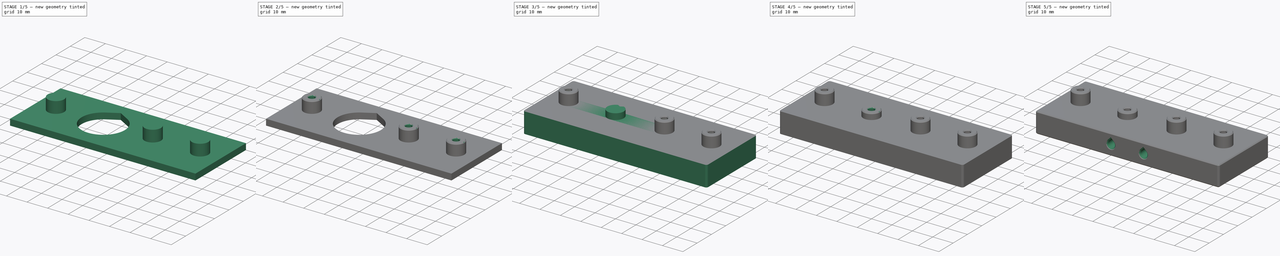
[diagram: build sequence overview — one tinted view per stage of 5, left to right]
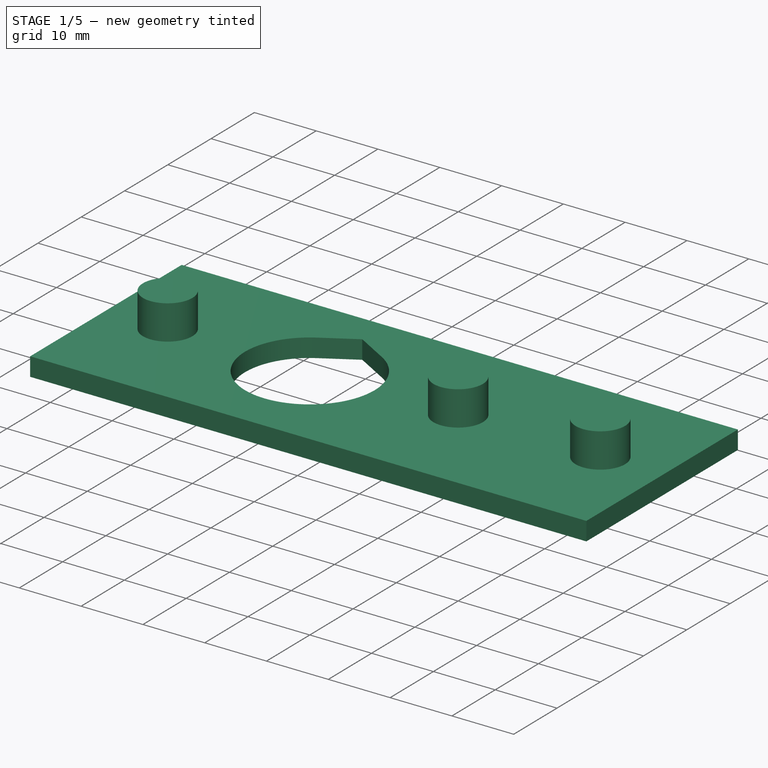
[diagram: stage 1 of 5 — iso view after this stage's code; geometry added in this stage tinted green]
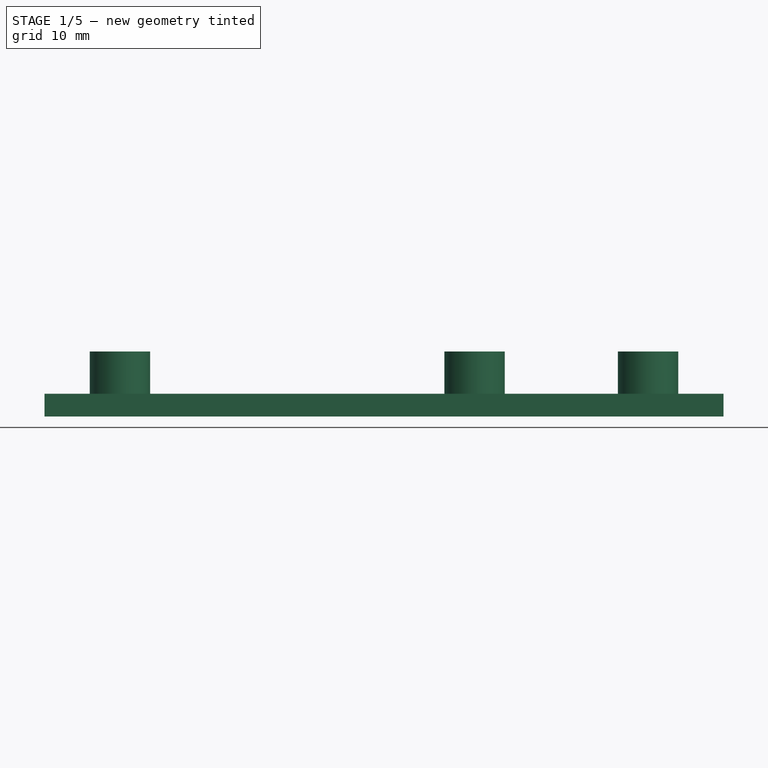
[diagram: stage 1 of 5 — front view after this stage's code; geometry added in this stage tinted green]
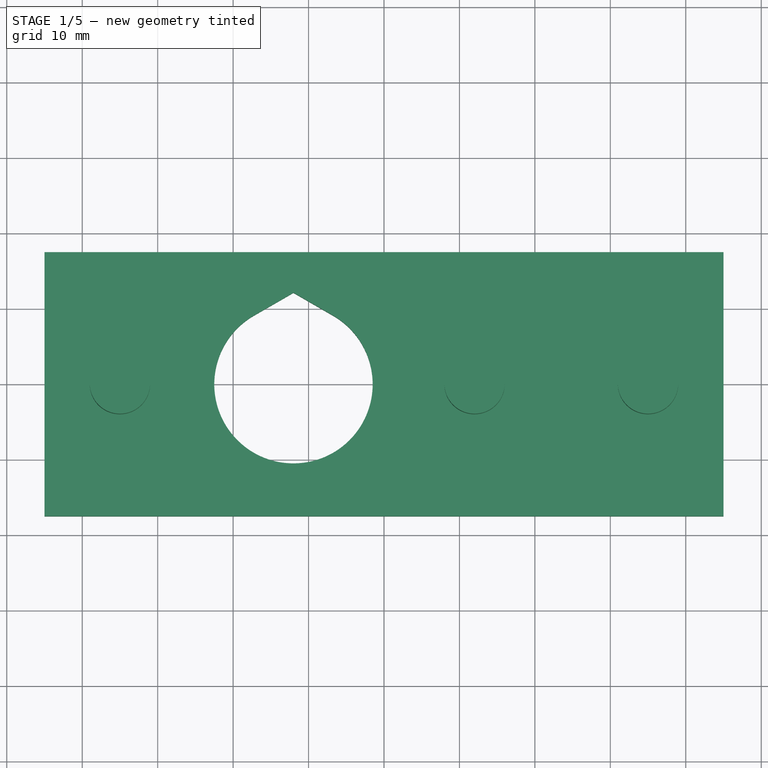
[diagram: stage 1 of 5 — top view after this stage's code; geometry added in this stage tinted green]
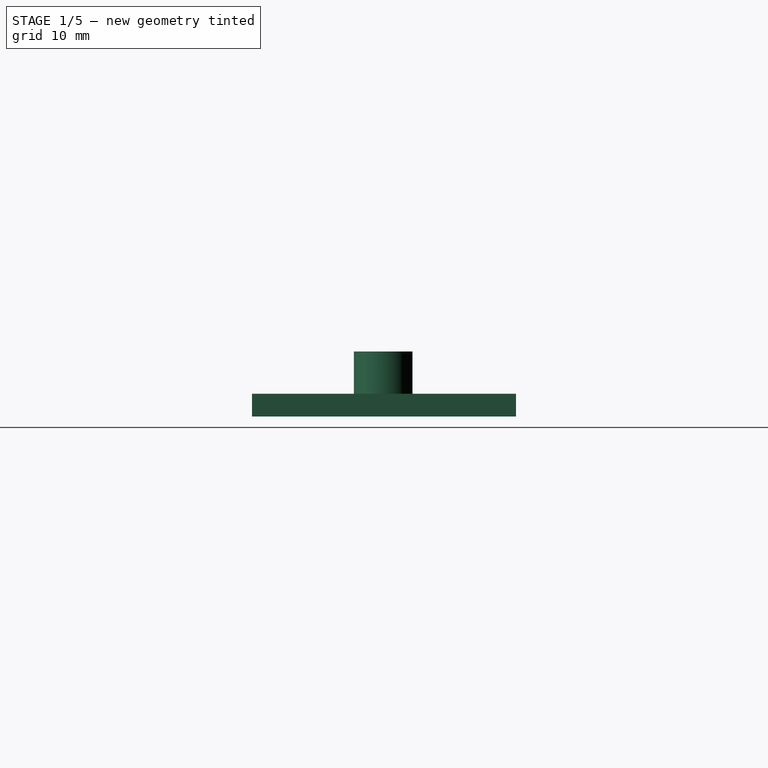
[diagram: stage 1 of 5 — right view after this stage's code; geometry added in this stage tinted green]
FCSTD DOCUMENT  (FreeCAD 1.0R39109 (Git))
Label: spacer
License: All rights reserved
LicenseURL: https://en.wikipedia.org/wiki/All_rights_reserved
objects: Sketcher::SketchObject×14, PartDesign::Pocket×6, PartDesign::Pad×5, PartDesign::Chamfer×5, PartDesign::Hole×4, PartDesign::Fillet×3, PartDesign::Body×1
note: 98 computed .brp shape members not serialized (recipe doc carries the construction recipe); baked Part::Feature solids carry a one-line shape summary decoded from their .brp

FEATURE [Sketcher::SketchObject] Sketch
  ArcFitTolerance = 1e-06
  AttachmentSupport = -> [XY_Plane]
  FullyConstrained = true
  MakeInternals = false
  MapMode = 5
  sketch-geometry (13):
    g0: LineSegment [constr] StartX=0 StartY=0 StartZ=0 EndX=-12 EndY=0 EndZ=0
    g1: Circle [constr] CenterX=-12 CenterY=0 CenterZ=0 NormalX=0 NormalY=0 NormalZ=1 AngleXU=0 Radius=12
    g2: LineSegment [constr] StartX=-12 StartY=0 StartZ=0 EndX=-35 EndY=0 EndZ=0
    g3: Circle [constr] CenterX=-35 CenterY=0 CenterZ=0 NormalX=0 NormalY=0 NormalZ=1 AngleXU=0 Radius=8
    g4: LineSegment StartX=-45 StartY=17.5 StartZ=0 EndX=-45 EndY=-17.5 EndZ=0
    g5: LineSegment StartX=-45 StartY=-17.5 StartZ=0 EndX=45 EndY=-17.5 EndZ=0
    g6: LineSegment StartX=45 StartY=-17.5 StartZ=0 EndX=45 EndY=17.5 EndZ=0
    g7: LineSegment StartX=45 StartY=17.5 StartZ=0 EndX=-45 EndY=17.5 EndZ=0
    g8: LineSegment [constr] StartX=-2e-16 StartY=17.5 StartZ=0 EndX=2e-16 EndY=-17.5 EndZ=0
    g9: LineSegment [constr] StartX=0 StartY=0 StartZ=0 EndX=12 EndY=0 EndZ=0
    g10: LineSegment [constr] StartX=12 StartY=0 StartZ=0 EndX=35 EndY=0 EndZ=0
    g11: Circle [constr] CenterX=12 CenterY=0 CenterZ=0 NormalX=0 NormalY=0 NormalZ=1 AngleXU=0 Radius=12
    g12: Circle [constr] CenterX=35 CenterY=0 CenterZ=0 NormalX=0 NormalY=0 NormalZ=1 AngleXU=0 Radius=8
  constraints (33):
    c: Distance(g0) = 12
    c: Coincident(g0,g-1)
    c: PointOnObject(g0,g-1)
    c: Coincident(g1,g0)
    c: PointOnObject(g0,g1)
    c: Distance(g2) = 23
    c: Coincident(g2,g0)
    c: PointOnObject(g2,g-1)
    c: Diameter(g3) = 16
    c: Coincident(g3,g2)
    c: Coincident(g4,g5)
    c: Coincident(g5,g6)
    c: Coincident(g6,g7)
    c: Coincident(g7,g4)
    c: Vertical(g4)
    c: Vertical(g6)
    c: Horizontal(g5)
    c: Horizontal(g7)
    c: DistanceX(g7,g7) = 90
    c: DistanceY(g4,g4) = 35
    c: Symmetric(g7,g7,g8)
    c: Symmetric(g5,g5,g8)
    c: Symmetric(g8,g8,g0)
    c: Distance(g9) = 12
    c: Coincident(g9,g0)
    c: PointOnObject(g9,g-1)
    c: Distance(g10) = 23
    c: Coincident(g10,g9)
    c: PointOnObject(g10,g-1)
    c: Coincident(g11,g9)
    c: Equal(g11,g1)
    c: Coincident(g12,g10)
    c: Equal(g12,g3)
FEATURE [PartDesign::Pad] Pad
  Direction = (0,0,1)
  Length = 3
  Length2 = 10
  Profile = -> Sketch
  ReferenceAxis = -> Sketch [N_Axis]
  Refine = true
  Suppressed = false
  Type = 0
FEATURE [Sketcher::SketchObject] Sketch001
  ArcFitTolerance = 1e-06
  AttachmentSupport = -> [Pad]
  FullyConstrained = true
  MakeInternals = false
  MapMode = 5
  Placement = pos=(0,0,3) rot=(0,0,1;0rad)
  sketch-geometry (2):
    g0: LineSegment [constr] StartX=0 StartY=0 StartZ=0 EndX=-12 EndY=0 EndZ=0
    g1: Circle CenterX=-12 CenterY=0 CenterZ=0 NormalX=0 NormalY=0 NormalZ=1 AngleXU=0 Radius=10.5
  constraints (5):
    c: Distance(g0) = 12
    c: Coincident(g0,g-1)
    c: PointOnObject(g0,g-1)
    c: Diameter(g1) = 21
    c: Coincident(g1,g0)
FEATURE [PartDesign::Hole] Hole
  BaseFeature = -> Pad
  CustomThreadClearance = 0
  Depth = 25
  DepthType = 0
  Diameter = 21
  DrillForDepth = false
  DrillPoint = 1
  DrillPointAngle = 118
  HoleCutCountersinkAngle = 90
  HoleCutCustomValues = false
  HoleCutDepth = 0
  HoleCutDiameter = 6.1
  HoleCutType = 0
  ModelThread = false
  Profile = -> Sketch001
  Refine = true
  Suppressed = false
  Tapered = false
  TaperedAngle = 90
  TeardropAngle = 120
  TeardropRotation = 90
  ThreadClass = 0
  ThreadDepth = 25
  ThreadDepthType = 0
  ThreadDirection = 0
  ThreadFit = 0
  ThreadSize = 0
  ThreadType = 0
  Threaded = false
  UseCustomThreadClearance = false
FEATURE [Sketcher::SketchObject] Sketch001_Teardrops
  ArcFitTolerance = 1e-06
  AttachmentSupport = -> [Sketch001]
  FullyConstrained = true
  MakeInternals = false
  MapMode = 2
  Placement = pos=(0,0,3) rot=(0,0,1;0rad)
  expr: Constraints[5] = Sketch001.Geometry[1].Center.x * 1 mm
  expr: Constraints[6] = Sketch001.Geometry[1].Center.y * 1 mm
  expr: Constraints[7] = Hole.Diameter
  expr: Constraints[8] = Hole.TeardropAngle
  expr: Constraints[9] = Hole.TeardropRotation
  sketch-geometry (4):
    g0: ArcOfCircle CenterX=-12 CenterY=0 CenterZ=0 NormalX=0 NormalY=0 NormalZ=1 AngleXU=0 Radius=10.5 StartAngle=2.0944 EndAngle=7.33038
    g1: LineSegment StartX=-17.25 StartY=9.09327 StartZ=0 EndX=-12 EndY=12.1244 EndZ=0
    g2: LineSegment StartX=-6.75 StartY=9.09327 StartZ=0 EndX=-12 EndY=12.1244 EndZ=0
    g3: LineSegment [constr] StartX=-12 StartY=0 StartZ=0 EndX=-12 EndY=12.1244 EndZ=0
  constraints (10):
    c: Coincident(g1,g2)
    c: Coincident(g1,g3)
    c: Coincident(g0,g3)
    c: Tangent(g0,g1) = 1.5708
    c: Tangent(g0,g2) = -1.5708
    c: DistanceX(g0) = -12
    c: DistanceY(g0) = 0
    c: Diameter(g0) = 21
    c: Angle(g1,g2) = 2.0944
    c: Angle(g3) = 1.5708
FEATURE [PartDesign::Pocket] Hole_Teardrops
  BaseFeature = -> Hole
  Direction = (0,0,-1)
  Length = 25
  Length2 = 5
  Profile = -> Sketch001_Teardrops
  ReferenceAxis = -> Sketch001_Teardrops [N_Axis]
  Refine = true
  Suppressed = false
  Type = 0
  expr: Length = Hole.Depth
  expr: Type = Hole.DepthType
FEATURE [Sketcher::SketchObject] Sketch002
  ArcFitTolerance = 1e-06
  AttachmentSupport = -> [Hole_Teardrops]
  FullyConstrained = true
  MakeInternals = false
  MapMode = 5
  Placement = pos=(0,0,3) rot=(0,0,1;0rad)
  sketch-geometry (7):
    g0: LineSegment [constr] StartX=0 StartY=0 StartZ=0 EndX=12 EndY=0 EndZ=0
    g1: LineSegment [constr] StartX=12 StartY=0 StartZ=0 EndX=35 EndY=0 EndZ=0
    g2: LineSegment [constr] StartX=0 StartY=0 StartZ=0 EndX=-12 EndY=0 EndZ=0
    g3: LineSegment [constr] StartX=-12 StartY=0 StartZ=0 EndX=-35 EndY=0 EndZ=0
    g4: Circle CenterX=35 CenterY=0 CenterZ=0 NormalX=0 NormalY=0 NormalZ=1 AngleXU=0 Radius=4
    g5: Circle CenterX=12 CenterY=0 CenterZ=0 NormalX=0 NormalY=0 NormalZ=1 AngleXU=0 Radius=4
    g6: Circle CenterX=-35 CenterY=0 CenterZ=0 NormalX=0 NormalY=0 NormalZ=1 AngleXU=0 Radius=4
  constraints (18):
    c: Distance(g0) = 12
    c: Coincident(g0,g-1)
    c: PointOnObject(g0,g-1)
    c: Distance(g1) = 23
    c: Coincident(g1,g0)
    c: PointOnObject(g1,g-1)
    c: Coincident(g2,g0)
    c: PointOnObject(g2,g-1)
    c: Coincident(g3,g2)
    c: PointOnObject(g3,g-1)
    c: Equal(g2,g0)
    c: Equal(g1,g3)
    c: Diameter(g4) = 8
    c: Coincident(g4,g1)
    c: Coincident(g5,g0)
    c: Coincident(g6,g3)
    c: Equal(g5,g4)
    c: Equal(g6,g5)
FEATURE [PartDesign::Pad] Pad001
  BaseFeature = -> Hole_Teardrops
  Direction = (0,0,1)
  Length = 5.6
  Length2 = 10
  Profile = -> Sketch002
  ReferenceAxis = -> Sketch002 [N_Axis]
  Refine = true
  Suppressed = false
  Type = 0
FEATURE [Sketcher::SketchObject] Sketch003
  ArcFitTolerance = 1e-06
  AttachmentSupport = -> [Pad001]
  ExternalGeometry = -> [Pad001]
  FullyConstrained = false
  MakeInternals = false
  MapMode = 5
  Placement = pos=(0,0,8.6) rot=(0,0,1;0rad)
  sketch-geometry (10):
    g0: LineSegment [constr] StartX=-35 StartY=0 StartZ=0 EndX=-35 EndY=3 EndZ=0
    g1: LineSegment StartX=-35 StartY=3 StartZ=0 EndX=-38.4641 EndY=5 EndZ=0
    g2: LineSegment StartX=-35 StartY=3 StartZ=0 EndX=-31.5359 EndY=5 EndZ=0
    g3: LineSegment StartX=-38.4641 StartY=5 StartZ=0 EndX=-31.5359 EndY=5 EndZ=0
    g4: LineSegment StartX=12 StartY=3 StartZ=0 EndX=8.5359 EndY=5 EndZ=0
    g5: LineSegment StartX=8.5359 StartY=5 StartZ=0 EndX=15.4641 EndY=5 EndZ=0
    g6: LineSegment StartX=15.4641 StartY=5 StartZ=0 EndX=12 EndY=3 EndZ=0
    g7: LineSegment StartX=38.4641 StartY=5 StartZ=0 EndX=35 EndY=3 EndZ=0
    g8: LineSegment StartX=31.5359 StartY=5 StartZ=0 EndX=38.4641 EndY=5 EndZ=0
    g9: LineSegment StartX=35 StartY=3 StartZ=0 EndX=31.5359 EndY=5 EndZ=0
  constraints (17):
    c: Distance(g0) = 3
    c: Coincident(g0,g-3)
    c: Vertical(g0)
    c: Distance(g1) = 4
    c: Coincident(g1,g0)
    c: Angle(g1,g0) = 2.0944
    c: Coincident(g2,g0)
    c: Equal(g2,g1)
    c: Angle(g0,g2) = 2.0944
    c: Coincident(g3,g1)
    c: Coincident(g3,g2)
    c: Coincident(g5,g4)
    c: Coincident(g6,g5)
    c: Coincident(g6,g4)
    c: Coincident(g8,g9)
    c: Coincident(g7,g8)
    c: Coincident(g7,g9)
FEATURE [PartDesign::Pocket] Pocket
  BaseFeature = -> Pad001
  Direction = (0,0,-1)
  Length = 0
  Length2 = 5
  Profile = -> Sketch003
  ReferenceAxis = -> Sketch003 [N_Axis]
  Refine = true
  Suppressed = false
  Type = 3
  UpToFace = -> Pad001 [Face5]
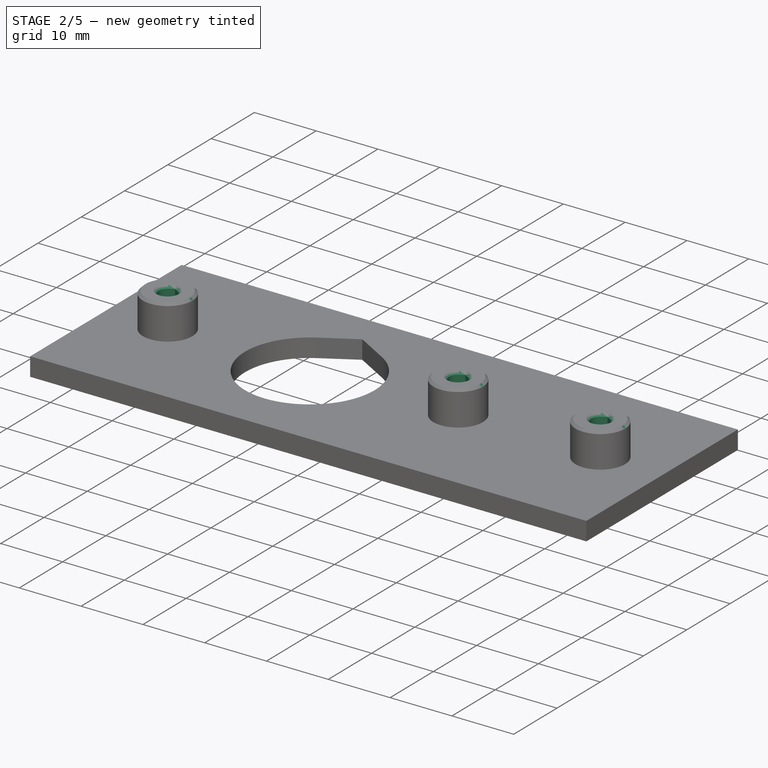
[diagram: stage 2 of 5 — iso view after this stage's code; geometry added in this stage tinted green]
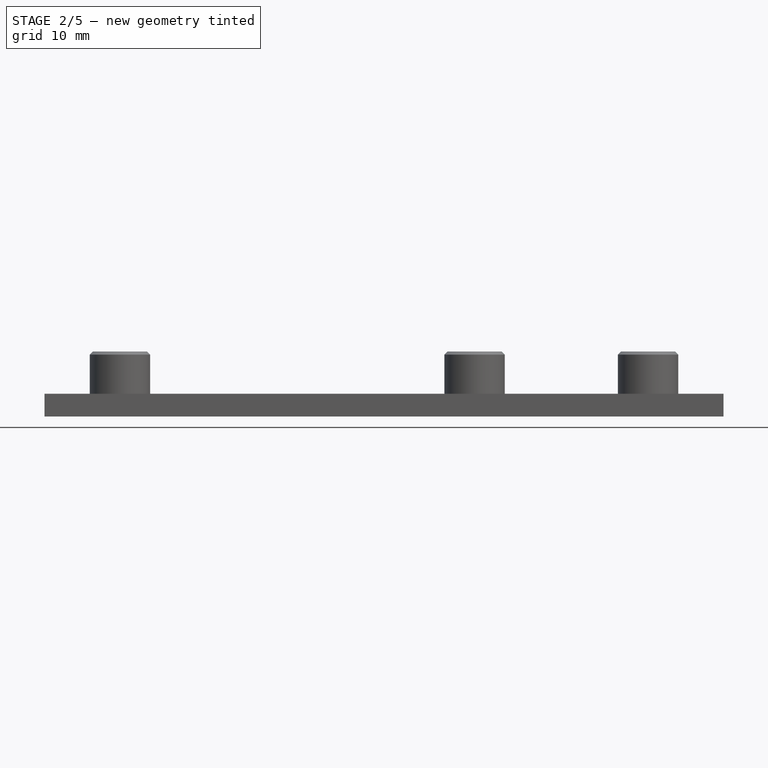
[diagram: stage 2 of 5 — front view after this stage's code; geometry added in this stage tinted green]
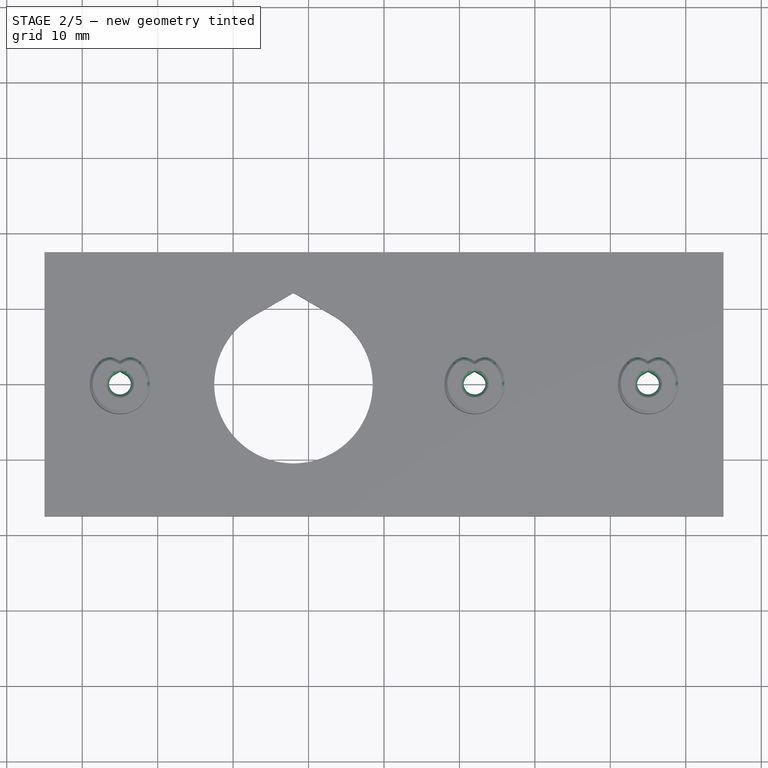
[diagram: stage 2 of 5 — top view after this stage's code; geometry added in this stage tinted green]
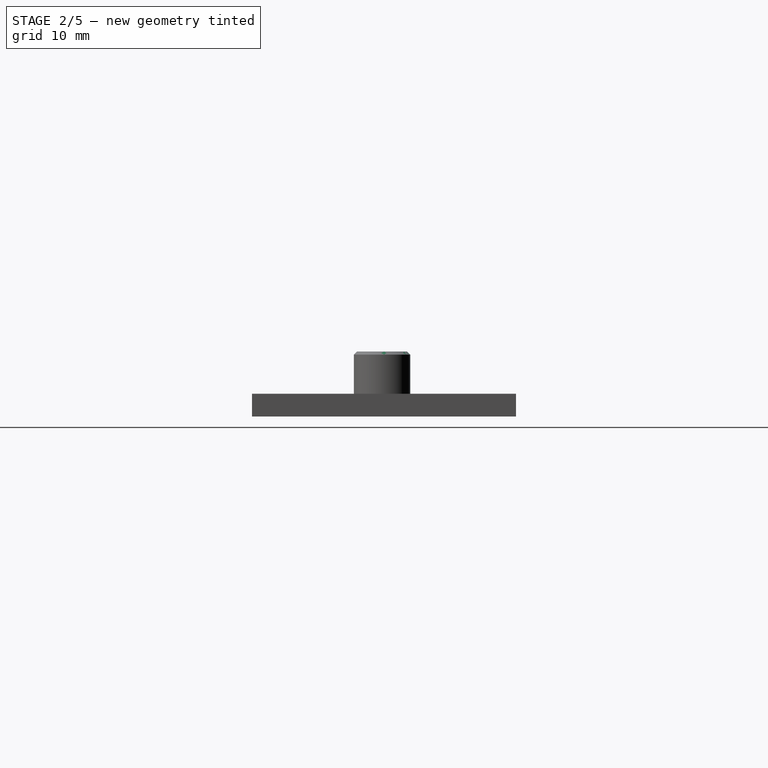
[diagram: stage 2 of 5 — right view after this stage's code; geometry added in this stage tinted green]
FEATURE [Sketcher::SketchObject] Sketch004
  ArcFitTolerance = 1e-06
  AttachmentSupport = -> [Pocket]
  ExternalGeometry = -> [Pocket]
  FullyConstrained = true
  MakeInternals = false
  MapMode = 5
  Placement = pos=(0,0,8.6) rot=(0,0,1;0rad)
  sketch-geometry (3):
    g0: Circle CenterX=-35 CenterY=0 CenterZ=0 NormalX=0 NormalY=0 NormalZ=1 AngleXU=0 Radius=1.25
    g1: Circle CenterX=12 CenterY=0 CenterZ=0 NormalX=0 NormalY=0 NormalZ=1 AngleXU=0 Radius=1.25
    g2: Circle CenterX=35 CenterY=0 CenterZ=0 NormalX=0 NormalY=0 NormalZ=1 AngleXU=0 Radius=1.25
  constraints (6):
    c: Diameter(g0) = 2.5
    c: Coincident(g0,g-3)
    c: Coincident(g1,g-4)
    c: Coincident(g2,g-5)
    c: Equal(g1,g0)
    c: Equal(g2,g1)
FEATURE [PartDesign::Hole] Hole001
  BaseFeature = -> Pocket
  CustomThreadClearance = 0
  Depth = 25
  DepthType = 0
  Diameter = 2.9
  DrillForDepth = false
  DrillPoint = 1
  DrillPointAngle = 118
  HoleCutCountersinkAngle = 90
  HoleCutCustomValues = false
  HoleCutDepth = 0
  HoleCutDiameter = 6.1
  HoleCutType = 0
  ModelThread = false
  Profile = -> Sketch004
  Refine = true
  Suppressed = false
  Tapered = false
  TaperedAngle = 90
  TeardropAngle = 120
  TeardropRotation = 90
  ThreadClass = 0
  ThreadDepth = 25
  ThreadDepthType = 0
  ThreadDirection = 0
  ThreadFit = 0
  ThreadSize = 8
  ThreadType = 1
  Threaded = false
  UseCustomThreadClearance = false
FEATURE [Sketcher::SketchObject] Sketch004_Teardrops
  ArcFitTolerance = 1e-06
  AttachmentSupport = -> [Sketch004]
  FullyConstrained = true
  MakeInternals = false
  MapMode = 2
  Placement = pos=(0,0,8.6) rot=(0,0,1;0rad)
  expr: Constraints[15] = Sketch004.Geometry[1].Center.x * 1 mm
  expr: Constraints[16] = Sketch004.Geometry[1].Center.y * 1 mm
  expr: Constraints[17] = Hole001.Diameter
  expr: Constraints[18] = Hole001.TeardropAngle
  expr: Constraints[19] = Hole001.TeardropRotation
  expr: Constraints[25] = Sketch004.Geometry[2].Center.x * 1 mm
  expr: Constraints[26] = Sketch004.Geometry[2].Center.y * 1 mm
  expr: Constraints[27] = Hole001.Diameter
  expr: Constraints[28] = Hole001.TeardropAngle
  expr: Constraints[29] = Hole001.TeardropRotation
  expr: Constraints[5] = Sketch004.Geometry[0].Center.x * 1 mm
  expr: Constraints[6] = Sketch004.Geometry[0].Center.y * 1 mm
  expr: Constraints[7] = Hole001.Diameter
  expr: Constraints[8] = Hole001.TeardropAngle
  expr: Constraints[9] = Hole001.TeardropRotation
  sketch-geometry (12):
    g0: ArcOfCircle CenterX=-35 CenterY=0 CenterZ=0 NormalX=0 NormalY=0 NormalZ=1 AngleXU=0 Radius=1.45 StartAngle=2.0944 EndAngle=7.33038
    g1: LineSegment StartX=-35.725 StartY=1.25574 StartZ=0 EndX=-35 EndY=1.67432 EndZ=0
    g2: LineSegment StartX=-34.275 StartY=1.25574 StartZ=0 EndX=-35 EndY=1.67432 EndZ=0
    g3: LineSegment [constr] StartX=-35 StartY=0 StartZ=0 EndX=-35 EndY=1.67432 EndZ=0
    g4: ArcOfCircle CenterX=12 CenterY=0 CenterZ=0 NormalX=0 NormalY=0 NormalZ=1 AngleXU=0 Radius=1.45 StartAngle=2.0944 EndAngle=7.33038
    g5: LineSegment StartX=11.275 StartY=1.25574 StartZ=0 EndX=12 EndY=1.67432 EndZ=0
    g6: LineSegment StartX=12.725 StartY=1.25574 StartZ=0 EndX=12 EndY=1.67432 EndZ=0
    g7: LineSegment [constr] StartX=12 StartY=0 StartZ=0 EndX=12 EndY=1.67432 EndZ=0
    g8: ArcOfCircle CenterX=35 CenterY=0 CenterZ=0 NormalX=0 NormalY=0 NormalZ=1 AngleXU=0 Radius=1.45 StartAngle=2.0944 EndAngle=7.33038
    g9: LineSegment StartX=34.275 StartY=1.25574 StartZ=0 EndX=35 EndY=1.67432 EndZ=0
    g10: LineSegment StartX=35.725 StartY=1.25574 StartZ=0 EndX=35 EndY=1.67432 EndZ=0
    g11: LineSegment [constr] StartX=35 StartY=0 StartZ=0 EndX=35 EndY=1.67432 EndZ=0
  constraints (30):
    c: Coincident(g1,g2)
    c: Coincident(g1,g3)
    c: Coincident(g0,g3)
    c: Tangent(g0,g1) = 1.5708
    c: Tangent(g0,g2) = -1.5708
    c: DistanceX(g0) = -35
    c: DistanceY(g0) = 0
    c: Diameter(g0) = 2.9
    c: Angle(g1,g2) = 2.0944
    c: Angle(g3) = 1.5708
    c: Coincident(g5,g6)
    c: Coincident(g5,g7)
    c: Coincident(g4,g7)
    c: Tangent(g4,g5) = 1.5708
    c: Tangent(g4,g6) = -1.5708
    c: DistanceX(g4) = 12
    c: DistanceY(g4) = 0
    c: Diameter(g4) = 2.9
    c: Angle(g5,g6) = 2.0944
    c: Angle(g7) = 1.5708
    c: Coincident(g9,g10)
    c: Coincident(g9,g11)
    c: Coincident(g8,g11)
    c: Tangent(g8,g9) = 1.5708
    c: Tangent(g8,g10) = -1.5708
    c: DistanceX(g8) = 35
    c: DistanceY(g8) = 0
    c: Diameter(g8) = 2.9
    c: Angle(g9,g10) = 2.0944
    c: Angle(g11) = 1.5708
FEATURE [PartDesign::Pocket] Hole001_Teardrops
  BaseFeature = -> Hole001
  Direction = (0,0,-1)
  Length = 25
  Length2 = 5
  Profile = -> Sketch004_Teardrops
  ReferenceAxis = -> Sketch004_Teardrops [N_Axis]
  Refine = true
  Suppressed = false
  Type = 0
  expr: Length = Hole001.Depth
  expr: Type = Hole001.DepthType
FEATURE [PartDesign::Fillet] Fillet
  Base = -> Hole001_Teardrops [Edge80,Edge77,Edge73,Edge70,Edge66,Edge63]
  BaseFeature = -> Hole001_Teardrops
  Radius = 2
  Refine = true
  SupportTransform = false
  Suppressed = false
  UseAllEdges = false
FEATURE [PartDesign::Chamfer] Chamfer
  Angle = 45
  Base = -> Fillet [Edge64,Edge53,Edge27,Edge78,Edge94,Edge98]
  BaseFeature = -> Fillet
  ChamferType = 0
  FlipDirection = false
  Refine = true
  Size = 0.4
  Size2 = 1
  SupportTransform = false
  Suppressed = false
  UseAllEdges = false
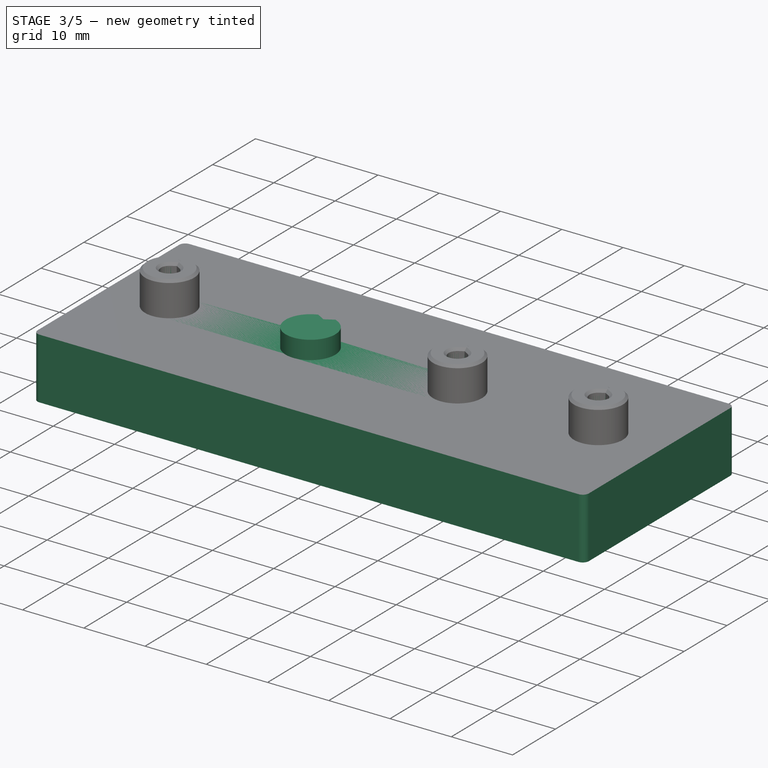
[diagram: stage 3 of 5 — iso view after this stage's code; geometry added in this stage tinted green]
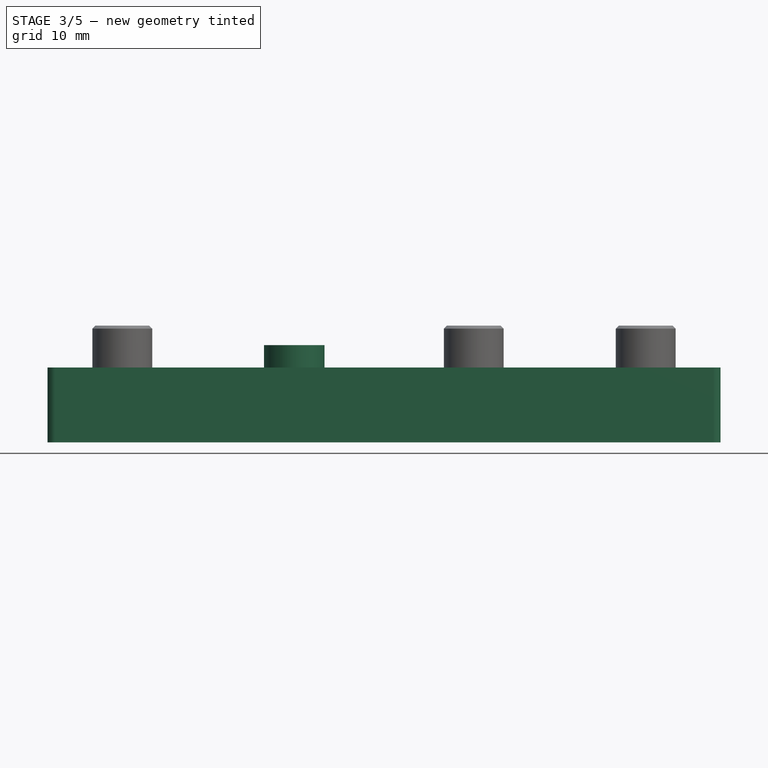
[diagram: stage 3 of 5 — front view after this stage's code; geometry added in this stage tinted green]
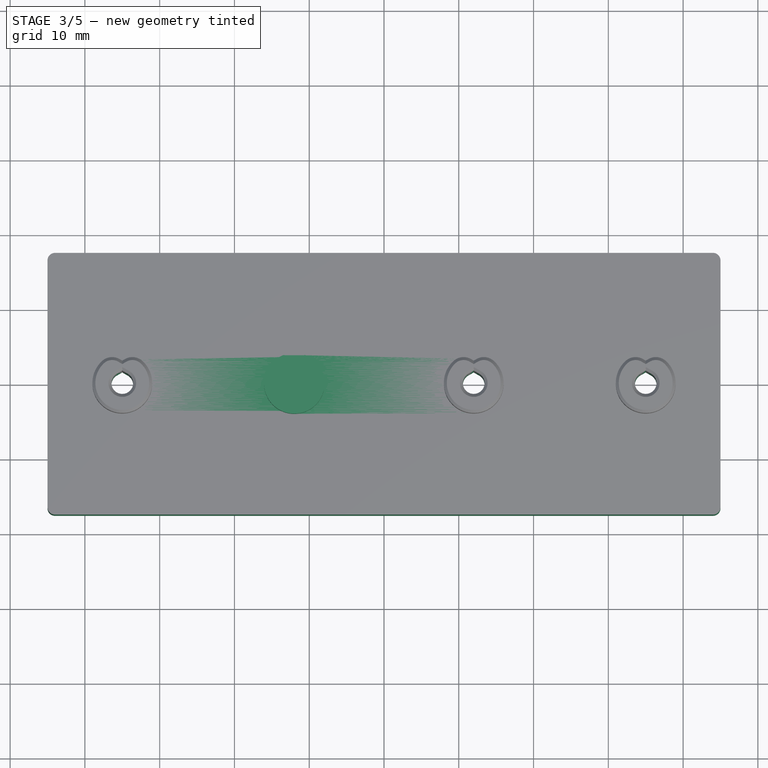
[diagram: stage 3 of 5 — top view after this stage's code; geometry added in this stage tinted green]
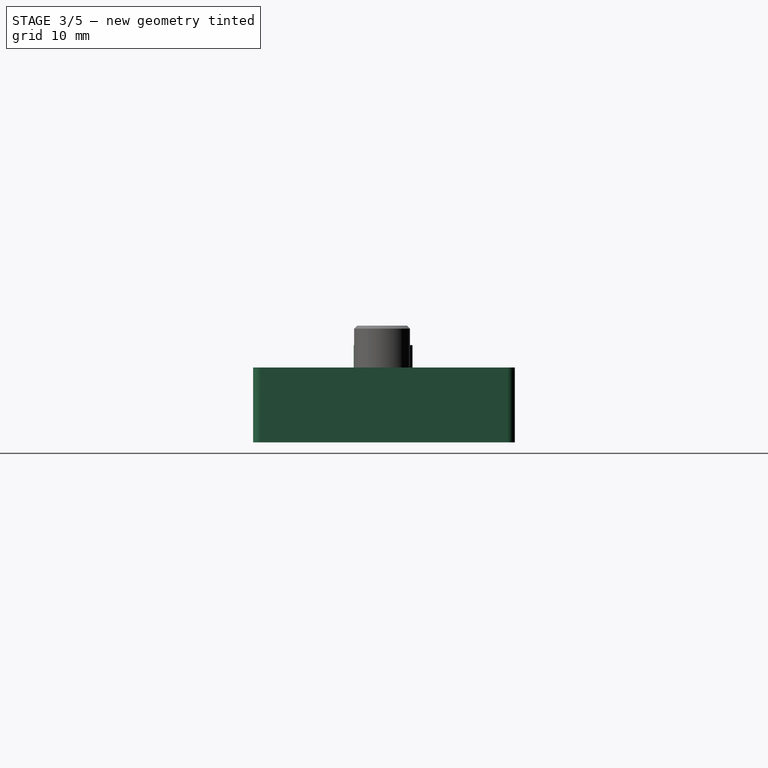
[diagram: stage 3 of 5 — right view after this stage's code; geometry added in this stage tinted green]
FEATURE [PartDesign::Fillet] Fillet001
  Base = -> Chamfer [Edge57,Edge52,Edge53,Edge55]
  BaseFeature = -> Chamfer
  Radius = 1
  Refine = true
  SupportTransform = false
  Suppressed = false
  UseAllEdges = false
FEATURE [PartDesign::Pad] Pad002
  BaseFeature = -> Fillet001
  Direction = (0,0,-1)
  Length = 7
  Length2 = 10
  Profile = -> Fillet001 [Face28]
  Refine = true
  Suppressed = false
  Type = 0
FEATURE [Sketcher::SketchObject] Sketch005
  ArcFitTolerance = 1e-06
  AttachmentSupport = -> [Pad002]
  FullyConstrained = false
  MakeInternals = false
  MapMode = 5
  Placement = pos=(0,0,3) rot=(0,0,1;0rad)
  sketch-geometry (1):
    g0: Circle CenterX=-11.6392 CenterY=0 CenterZ=0 NormalX=0 NormalY=0 NormalZ=1 AngleXU=0 Radius=14.7165
  constraints (1):
    c: PointOnObject(g0,g-1)
FEATURE [PartDesign::Pad] Pad003
  BaseFeature = -> Pad002
  Direction = (0,0,1)
  Length = 10
  Length2 = 10
  Profile = -> Sketch005 [Edge1]
  ReferenceAxis = -> Sketch005 [N_Axis]
  Refine = true
  Reversed = true
  Suppressed = false
  Type = 3
  UpToFace = -> Pad002 [Face1]
FEATURE [Sketcher::SketchObject] Sketch006
  ArcFitTolerance = 1e-06
  AttachmentSupport = -> [Pad003]
  ExternalGeometry = -> [Pad003]
  FullyConstrained = true
  MakeInternals = false
  MapMode = 5
  Placement = pos=(0,0,3) rot=(0,0,1;0rad)
  sketch-geometry (3):
    g0: LineSegment [constr] StartX=2e-16 StartY=0 StartZ=0 EndX=12 EndY=0 EndZ=0
    g1: LineSegment [constr] StartX=2e-16 StartY=0 StartZ=0 EndX=-12 EndY=0 EndZ=0
    g2: Circle CenterX=-12 CenterY=0 CenterZ=0 NormalX=0 NormalY=0 NormalZ=1 AngleXU=0 Radius=4.05
  constraints (7):
    c: Coincident(g0,g-1)
    c: Coincident(g0,g-3)
    c: Coincident(g1,g0)
    c: PointOnObject(g1,g-1)
    c: Equal(g1,g0)
    c: Diameter(g2) = 8.1
    c: Coincident(g2,g1)
FEATURE [PartDesign::Pad] Pad004
  BaseFeature = -> Pad003
  Direction = (0,0,1)
  Length = 3
  Length2 = 10
  Profile = -> Sketch006
  ReferenceAxis = -> Sketch006 [N_Axis]
  Refine = true
  Suppressed = false
  Type = 0
FEATURE [Sketcher::SketchObject] Sketch007
  ArcFitTolerance = 1e-06
  AttachmentSupport = -> [Pad004]
  ExternalGeometry = -> [Pad004]
  FullyConstrained = true
  MakeInternals = false
  MapMode = 5
  Placement = pos=(0,0,6) rot=(0,0,1;0rad)
  sketch-geometry (4):
    g0: LineSegment [constr] StartX=-12 StartY=0 StartZ=0 EndX=-12 EndY=3 EndZ=0
    g1: LineSegment StartX=-12 StartY=3 StartZ=0 EndX=-15.4641 EndY=5 EndZ=0
    g2: LineSegment StartX=-12 StartY=3 StartZ=0 EndX=-8.5359 EndY=5 EndZ=0
    g3: LineSegment StartX=-8.5359 StartY=5 StartZ=0 EndX=-15.4641 EndY=5 EndZ=0
  constraints (11):
    c: Distance(g0) = 3
    c: Coincident(g0,g-3)
    c: Vertical(g0)
    c: Distance(g1) = 4
    c: Coincident(g1,g0)
    c: Angle(g1,g0) = 2.0944
    c: Coincident(g2,g0)
    c: Equal(g2,g1)
    c: Angle(g0,g2) = 2.0944
    c: Coincident(g3,g2)
    c: Coincident(g3,g1)
FEATURE [PartDesign::Pocket] Pocket001
  BaseFeature = -> Pad004
  Direction = (0,0,-1)
  Length = 0
  Length2 = 5
  Profile = -> Sketch007
  ReferenceAxis = -> Sketch007 [N_Axis]
  Refine = true
  Suppressed = false
  Type = 3
  UpToFace = -> Pad004 [Face5]
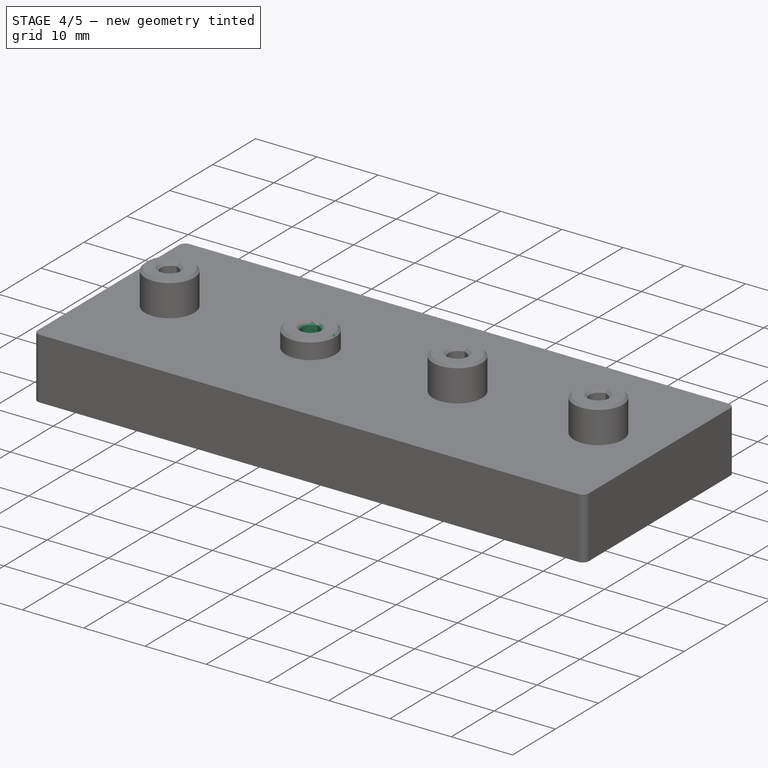
[diagram: stage 4 of 5 — iso view after this stage's code; geometry added in this stage tinted green]
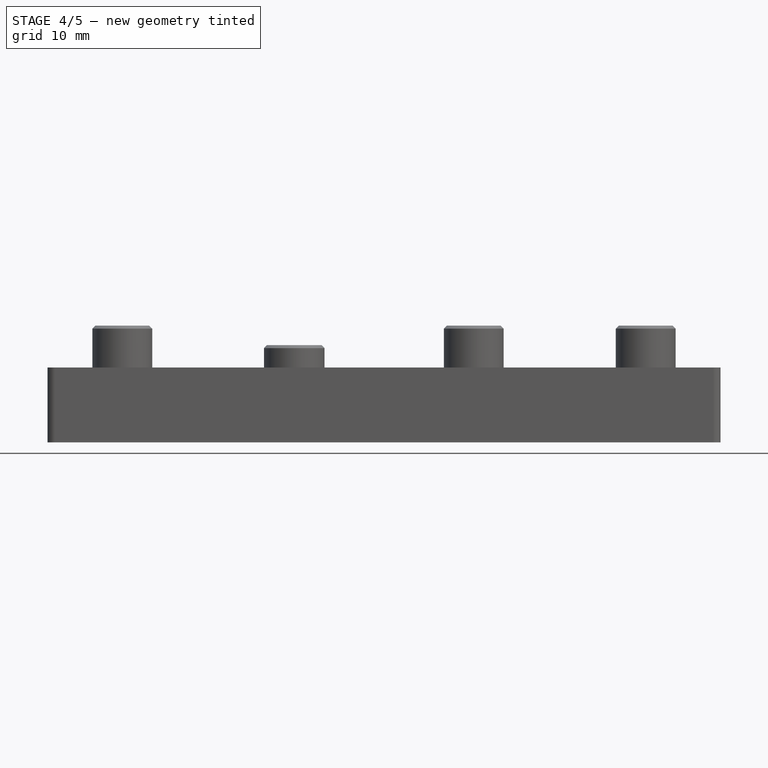
[diagram: stage 4 of 5 — front view after this stage's code; geometry added in this stage tinted green]
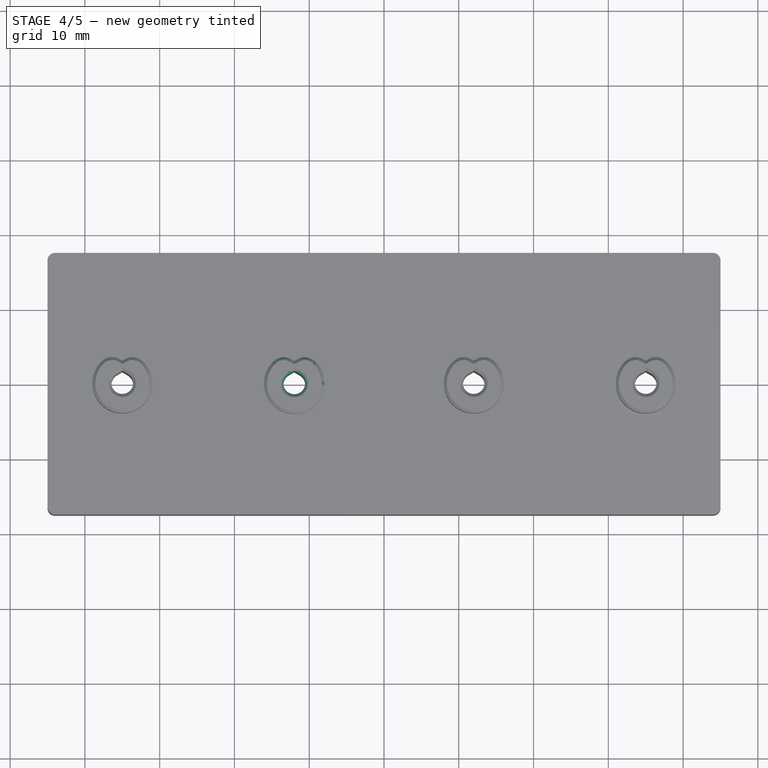
[diagram: stage 4 of 5 — top view after this stage's code; geometry added in this stage tinted green]
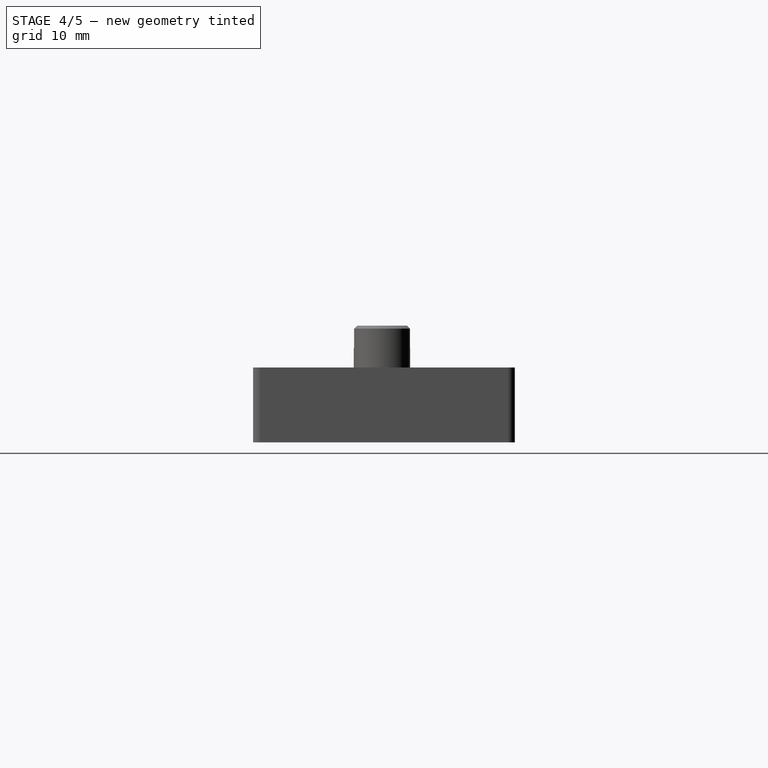
[diagram: stage 4 of 5 — right view after this stage's code; geometry added in this stage tinted green]
FEATURE [Sketcher::SketchObject] Sketch008
  ArcFitTolerance = 1e-06
  AttachmentSupport = -> [Pocket001]
  ExternalGeometry = -> [Pocket001]
  FullyConstrained = true
  MakeInternals = false
  MapMode = 5
  Placement = pos=(0,0,6) rot=(0,0,1;0rad)
  sketch-geometry (1):
    g0: Circle CenterX=-12 CenterY=0 CenterZ=0 NormalX=0 NormalY=0 NormalZ=1 AngleXU=0 Radius=1.25
  constraints (2):
    c: Diameter(g0) = 2.5
    c: Coincident(g0,g-3)
FEATURE [PartDesign::Hole] Hole002
  BaseFeature = -> Pocket001
  CustomThreadClearance = 0
  Depth = 25
  DepthType = 0
  Diameter = 2.9
  DrillForDepth = false
  DrillPoint = 1
  DrillPointAngle = 118
  HoleCutCountersinkAngle = 90
  HoleCutCustomValues = false
  HoleCutDepth = 0
  HoleCutDiameter = 6.1
  HoleCutType = 0
  ModelThread = false
  Profile = -> Sketch008
  Refine = true
  Suppressed = false
  Tapered = false
  TaperedAngle = 90
  TeardropAngle = 120
  TeardropRotation = 90
  ThreadClass = 0
  ThreadDepth = 25
  ThreadDepthType = 0
  ThreadDirection = 0
  ThreadFit = 0
  ThreadSize = 8
  ThreadType = 1
  Threaded = false
  UseCustomThreadClearance = false
FEATURE [Sketcher::SketchObject] Sketch008_Teardrops
  ArcFitTolerance = 1e-06
  AttachmentSupport = -> [Sketch008]
  FullyConstrained = true
  MakeInternals = false
  MapMode = 2
  Placement = pos=(0,0,6) rot=(0,0,1;0rad)
  expr: Constraints[5] = Sketch008.Geometry[0].Center.x * 1 mm
  expr: Constraints[6] = Sketch008.Geometry[0].Center.y * 1 mm
  expr: Constraints[7] = Hole002.Diameter
  expr: Constraints[8] = Hole002.TeardropAngle
  expr: Constraints[9] = Hole002.TeardropRotation
  sketch-geometry (4):
    g0: ArcOfCircle CenterX=-12 CenterY=0 CenterZ=0 NormalX=0 NormalY=0 NormalZ=1 AngleXU=0 Radius=1.45 StartAngle=2.0944 EndAngle=7.33038
    g1: LineSegment StartX=-12.725 StartY=1.25574 StartZ=0 EndX=-12 EndY=1.67432 EndZ=0
    g2: LineSegment StartX=-11.275 StartY=1.25574 StartZ=0 EndX=-12 EndY=1.67432 EndZ=0
    g3: LineSegment [constr] StartX=-12 StartY=0 StartZ=0 EndX=-12 EndY=1.67432 EndZ=0
  constraints (10):
    c: Coincident(g1,g2)
    c: Coincident(g1,g3)
    c: Coincident(g0,g3)
    c: Tangent(g0,g1) = 1.5708
    c: Tangent(g0,g2) = -1.5708
    c: DistanceX(g0) = -12
    c: DistanceY(g0) = 0
    c: Diameter(g0) = 2.9
    c: Angle(g1,g2) = 2.0944
    c: Angle(g3) = 1.5708
FEATURE [PartDesign::Pocket] Hole002_Teardrops
  BaseFeature = -> Hole002
  Direction = (0,0,-1)
  Length = 25
  Length2 = 5
  Profile = -> Sketch008_Teardrops
  ReferenceAxis = -> Sketch008_Teardrops [N_Axis]
  Refine = true
  Suppressed = false
  Type = 0
  expr: Length = Hole002.Depth
  expr: Type = Hole002.DepthType
FEATURE [PartDesign::Fillet] Fillet002
  Base = -> Hole002_Teardrops [Edge97,Edge94]
  BaseFeature = -> Hole002_Teardrops
  Radius = 2
  Refine = true
  SupportTransform = false
  Suppressed = false
  UseAllEdges = false
FEATURE [PartDesign::Chamfer] Chamfer001
  Angle = 45
  Base = -> Fillet002 [Edge96,Edge33]
  BaseFeature = -> Fillet002
  ChamferType = 0
  FlipDirection = false
  Refine = true
  Size = 0.4
  Size2 = 1
  SupportTransform = false
  Suppressed = false
  UseAllEdges = false
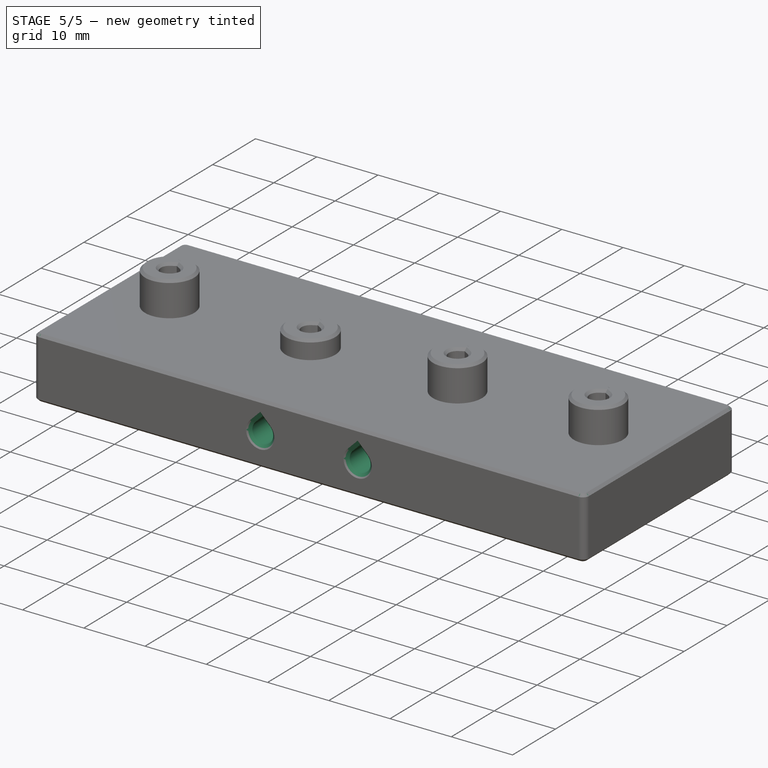
[diagram: stage 5 of 5 — iso view after this stage's code; geometry added in this stage tinted green]
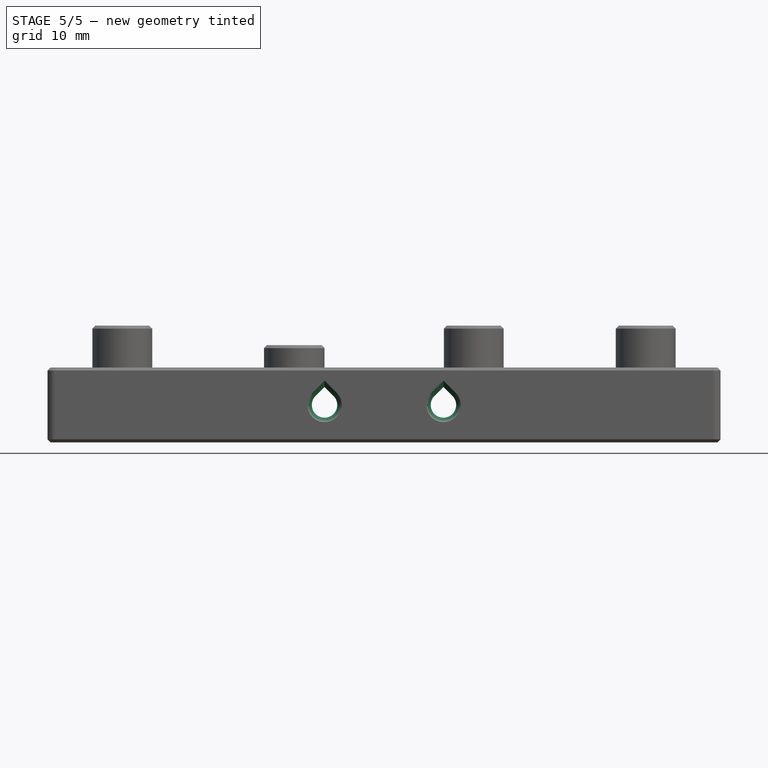
[diagram: stage 5 of 5 — front view after this stage's code; geometry added in this stage tinted green]
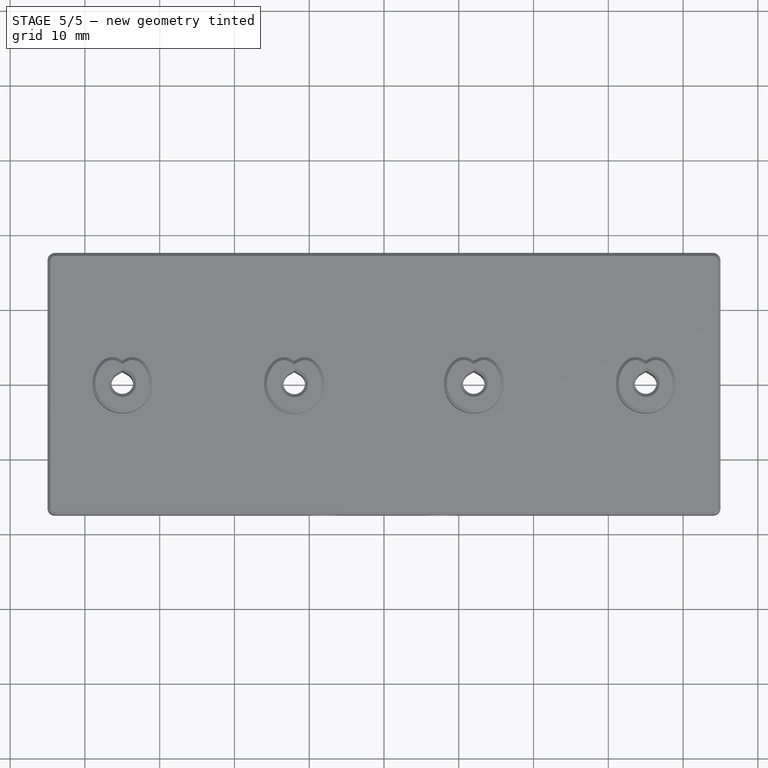
[diagram: stage 5 of 5 — top view after this stage's code; geometry added in this stage tinted green]
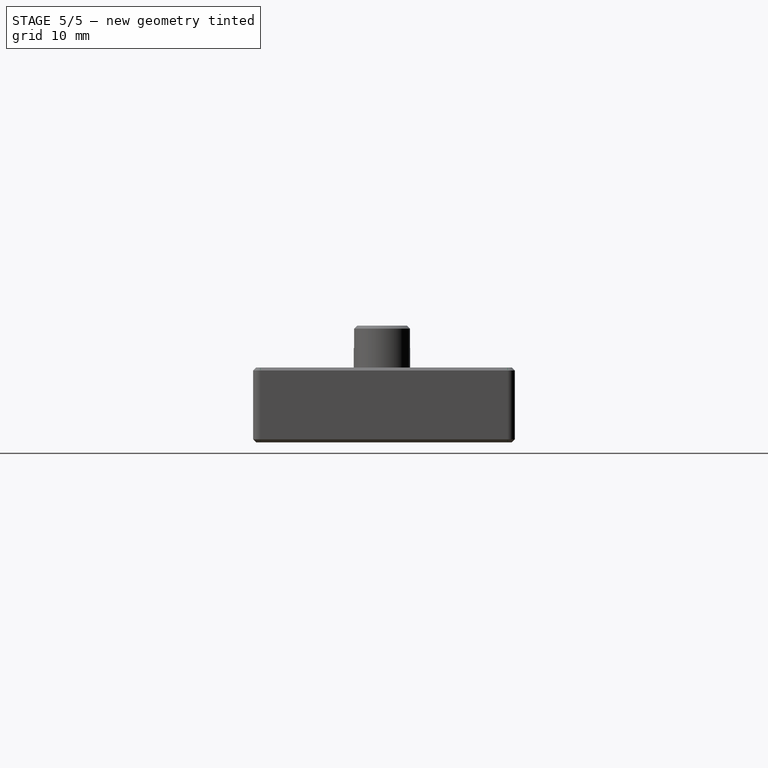
[diagram: stage 5 of 5 — right view after this stage's code; geometry added in this stage tinted green]
FEATURE [PartDesign::Chamfer] Chamfer002
  Angle = 45
  Base = -> Chamfer001 [Edge63,Edge18]
  BaseFeature = -> Chamfer001
  ChamferType = 0
  FlipDirection = false
  Refine = true
  Size = 0.4
  Size2 = 1
  SupportTransform = false
  Suppressed = false
  UseAllEdges = false
FEATURE [PartDesign::Chamfer] Chamfer003
  Angle = 45
  Base = -> Chamfer002 [Edge195,Edge191,Edge201,Edge199]
  BaseFeature = -> Chamfer002
  ChamferType = 0
  FlipDirection = false
  Refine = true
  Size = 0.6
  Size2 = 1
  SupportTransform = false
  Suppressed = false
  UseAllEdges = false
FEATURE [Sketcher::SketchObject] Sketch009
  ArcFitTolerance = 1e-06
  AttachmentSupport = -> [Chamfer003]
  ExternalGeometry = -> [Chamfer003]
  FullyConstrained = true
  MakeInternals = false
  MapMode = 5
  Placement = pos=(0,-17.5,0) rot=(1,0,0;1.5708rad)
  sketch-geometry (9):
    g0: LineSegment [constr] StartX=-2.7e-15 StartY=3 StartZ=0 EndX=-3e-16 EndY=-7 EndZ=0
    g1: Circle [constr] CenterX=-1.4e-15 CenterY=-2 CenterZ=0 NormalX=0 NormalY=0 NormalZ=1 AngleXU=0 Radius=15.5
    g2: LineSegment [constr] StartX=-7.95 StartY=5.6 StartZ=0 EndX=0 EndY=5.6 EndZ=0
    g3: LineSegment [constr] StartX=0 StartY=5.6 StartZ=0 EndX=-10 EndY=5.6 EndZ=0
    g4: LineSegment [constr] StartX=-7.95 StartY=5.6 StartZ=0 EndX=-7.95 EndY=-7 EndZ=0
    g5: LineSegment [constr] StartX=-1.4e-15 StartY=-2 StartZ=0 EndX=-7.95 EndY=-2 EndZ=0
    g6: Circle CenterX=-7.95 CenterY=-2 CenterZ=0 NormalX=0 NormalY=0 NormalZ=1 AngleXU=0 Radius=1.5
    g7: LineSegment [constr] StartX=-1.3e-15 StartY=-2 StartZ=0 EndX=7.95 EndY=-2 EndZ=0
    g8: Circle CenterX=7.95 CenterY=-2 CenterZ=0 NormalX=0 NormalY=0 NormalZ=1 AngleXU=0 Radius=1.5
  constraints (23):
    c: Symmetric(g-3,g-3,g0)
    c: Symmetric(g-4,g-4,g0)
    c: Diameter(g1) = 31
    c: Symmetric(g0,g0,g1)
    c: Coincident(g2,g-5)
    c: PointOnObject(g2,g-2)
    c: Horizontal(g2)
    c: Distance(g3) = 10
    c: Coincident(g3,g2)
    c: PointOnObject(g3,g-5)
    c: Coincident(g4,g2)
    c: PointOnObject(g4,g-4)
    c: Vertical(g4)
    c: Coincident(g5,g1)
    c: PointOnObject(g5,g4)
    c: Horizontal(g5)
    c: Diameter(g6) = 3
    c: Coincident(g6,g5)
    c: Symmetric(g0,g0,g7)
    c: Horizontal(g7)
    c: Equal(g7,g5)
    c: Coincident(g8,g7)
    c: Equal(g8,g6)
FEATURE [PartDesign::Hole] Hole003
  BaseFeature = -> Chamfer003
  CustomThreadClearance = 0
  Depth = 87
  DepthType = 0
  Diameter = 3.4
  DrillForDepth = false
  DrillPoint = 1
  DrillPointAngle = 118
  HoleCutCountersinkAngle = 90
  HoleCutCustomValues = false
  HoleCutDepth = 0
  HoleCutDiameter = 6.1
  HoleCutType = 0
  ModelThread = false
  Profile = -> Sketch009
  Refine = true
  Suppressed = false
  Tapered = false
  TaperedAngle = 90
  TeardropAngle = 90
  TeardropRotation = 90
  ThreadClass = 0
  ThreadDepth = 87
  ThreadDepthType = 0
  ThreadDirection = 0
  ThreadFit = 0
  ThreadSize = 9
  ThreadType = 1
  Threaded = false
  UseCustomThreadClearance = false
FEATURE [Sketcher::SketchObject] Sketch009_Teardrops
  ArcFitTolerance = 1e-06
  AttachmentSupport = -> [Sketch009]
  FullyConstrained = true
  MakeInternals = false
  MapMode = 2
  Placement = pos=(0,-17.5,0) rot=(1,0,0;1.5708rad)
  expr: Constraints[15] = Sketch009.Geometry[8].Center.x * 1 mm
  expr: Constraints[16] = Sketch009.Geometry[8].Center.y * 1 mm
  expr: Constraints[17] = Hole003.Diameter
  expr: Constraints[18] = Hole003.TeardropAngle
  expr: Constraints[19] = Hole003.TeardropRotation
  expr: Constraints[5] = Sketch009.Geometry[6].Center.x * 1 mm
  expr: Constraints[6] = Sketch009.Geometry[6].Center.y * 1 mm
  expr: Constraints[7] = Hole003.Diameter
  expr: Constraints[8] = Hole003.TeardropAngle
  expr: Constraints[9] = Hole003.TeardropRotation
  sketch-geometry (8):
    g0: ArcOfCircle CenterX=-7.95 CenterY=-2 CenterZ=0 NormalX=0 NormalY=0 NormalZ=1 AngleXU=0 Radius=1.7 StartAngle=2.35619 EndAngle=7.06858
    g1: LineSegment StartX=-9.15208 StartY=-0.797918 StartZ=0 EndX=-7.95 EndY=0.404163 EndZ=0
    g2: LineSegment StartX=-6.74792 StartY=-0.797918 StartZ=0 EndX=-7.95 EndY=0.404163 EndZ=0
    g3: LineSegment [constr] StartX=-7.95 StartY=-2 StartZ=0 EndX=-7.95 EndY=0.404163 EndZ=0
    g4: ArcOfCircle CenterX=7.95 CenterY=-2 CenterZ=0 NormalX=0 NormalY=0 NormalZ=1 AngleXU=0 Radius=1.7 StartAngle=2.35619 EndAngle=7.06858
    g5: LineSegment StartX=6.74792 StartY=-0.797918 StartZ=0 EndX=7.95 EndY=0.404163 EndZ=0
    g6: LineSegment StartX=9.15208 StartY=-0.797918 StartZ=0 EndX=7.95 EndY=0.404163 EndZ=0
    g7: LineSegment [constr] StartX=7.95 StartY=-2 StartZ=0 EndX=7.95 EndY=0.404163 EndZ=0
  constraints (20):
    c: Coincident(g1,g2)
    c: Coincident(g1,g3)
    c: Coincident(g0,g3)
    c: Tangent(g0,g1) = 1.5708
    c: Tangent(g0,g2) = -1.5708
    c: DistanceX(g0) = -7.95
    c: DistanceY(g0) = -2
    c: Diameter(g0) = 3.4
    c: Angle(g1,g2) = 1.5708
    c: Angle(g3) = 1.5708
    c: Coincident(g5,g6)
    c: Coincident(g5,g7)
    c: Coincident(g4,g7)
    c: Tangent(g4,g5) = 1.5708
    c: Tangent(g4,g6) = -1.5708
    c: DistanceX(g4) = 7.95
    c: DistanceY(g4) = -2
    c: Diameter(g4) = 3.4
    c: Angle(g5,g6) = 1.5708
    c: Angle(g7) = 1.5708
FEATURE [PartDesign::Pocket] Hole003_Teardrops
  BaseFeature = -> Hole003
  Direction = (0,1,-2e-16)
  Length = 87
  Length2 = 5
  Profile = -> Sketch009_Teardrops
  ReferenceAxis = -> Sketch009_Teardrops [N_Axis]
  Refine = true
  Suppressed = false
  Type = 0
  expr: Length = Hole003.Depth
  expr: Type = Hole003.DepthType
FEATURE [PartDesign::Chamfer] Chamfer004
  Angle = 45
  Base = -> Hole003_Teardrops [Edge83,Edge87,Edge107,Edge111]
  BaseFeature = -> Hole003_Teardrops
  ChamferType = 0
  FlipDirection = false
  Refine = true
  Size = 0.6
  Size2 = 1
  SupportTransform = false
  Suppressed = false
  UseAllEdges = false
FEATURE [PartDesign::Body] Body
  AllowCompound = false
  Group = -> [Sketch,Pad,Sketch001,Hole,Sketch001_Teardrops,Hole_Teardrops,Sketch002,Pad001,Sketch003,Pocket,Sketch004,Hole001,Sketch004_Teardrops,Hole001_Teardrops,Fillet,Chamfer,Fillet001,Pad002,Sketch005,Pad003,Sketch006,Pad004,Sketch007,Pocket001,Sketch008,Hole002,Sketch008_Teardrops,Hole002_Teardrops,Fillet002,Chamfer001,Chamfer002,Chamfer003,Sketch009,Hole003,Sketch009_Teardrops,Hole003_Teardrops,+1 more]
  Origin = -> Origin
  Tip = -> Chamfer004
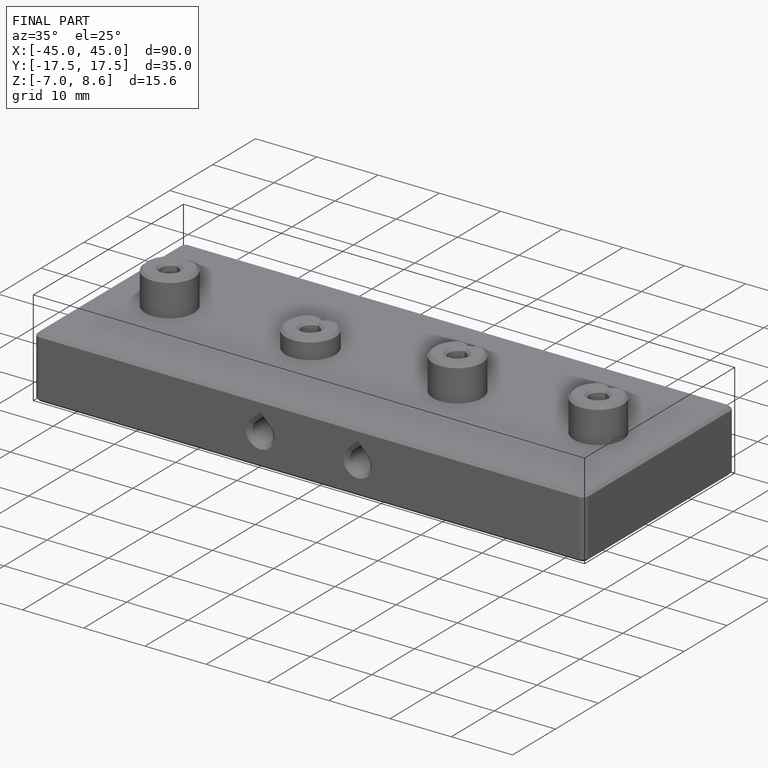
[diagram: finished part — iso view with bounding-box wireframe]
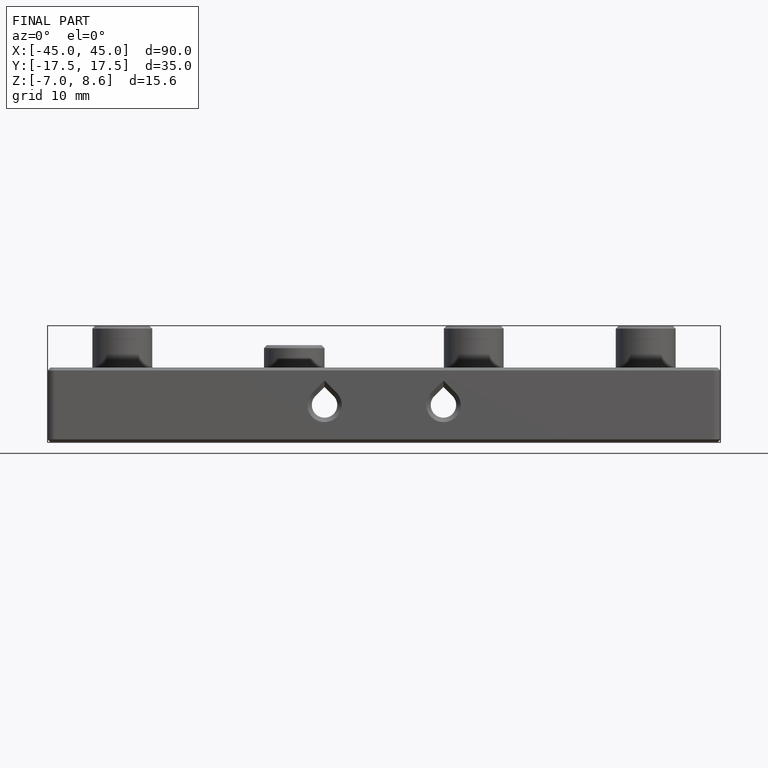
[diagram: finished part — front view with bounding-box wireframe]
